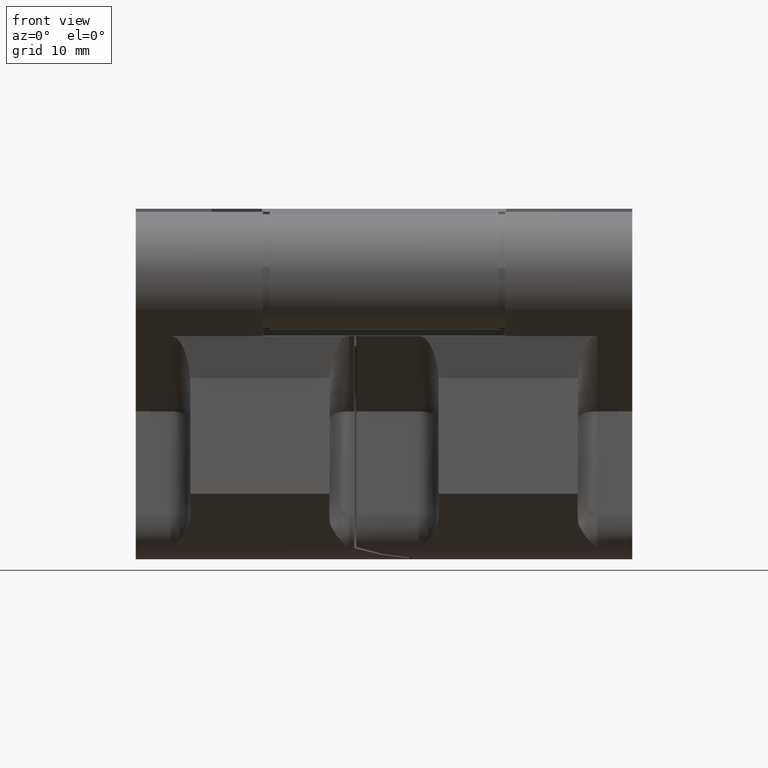
[diagram: clean part render]
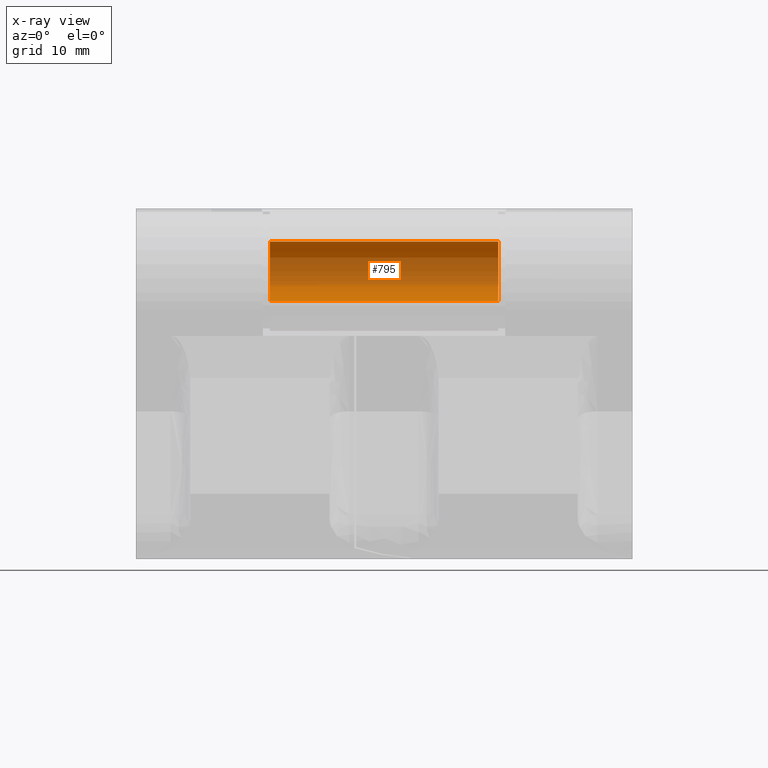
[diagram: x-ray — body ghosted, one internal face saturated and labeled with its STEP entity id]
A machine part, front view, then the same camera in x-ray: the body is ghosted and one INTERNAL B-rep face — a face not visible from any outside direction — is saturated and labeled: STEP entity #795.
In plain terms, the highlighted face is a freeform B-spline surface patch.
Its self-contained STEP definition (entity closure, byte-faithful):
#697=CARTESIAN_POINT('',(12.074999999999831,-33.764622712816461,31.990752001228881));
#698=CARTESIAN_POINT('',(12.074999999999825,-30.773870711617075,31.755374714045345));
#699=CARTESIAN_POINT('',(12.074999999999831,-31.009247998800621,28.764622712845970));
#700=CARTESIAN_POINT('',(12.074999999999825,-31.244625285984153,25.773870711646584));
#701=CARTESIAN_POINT('',(12.074999999999831,-34.235377287183539,26.009247998830119));
#702=CARTESIAN_POINT('',(-12.089374999992740,-33.764622712816461,31.990752001228881));
#703=CARTESIAN_POINT('',(-12.089374999992739,-30.773870711617075,31.755374714045345));
#704=CARTESIAN_POINT('',(-12.089374999992740,-31.009247998800621,28.764622712845970));
#705=CARTESIAN_POINT('',(-12.089374999992739,-31.244625285984153,25.773870711646584));
#706=CARTESIAN_POINT('',(-12.089374999992740,-34.235377287183539,26.009247998830119));
#714=(BOUNDED_SURFACE()B_SPLINE_SURFACE(2,1,((#697,#702),(#698,#703),(#699,#704),(#700,#705),(#701,#706)),.UNSPECIFIED.,.F.,.F.,.U.)B_SPLINE_SURFACE_WITH_KNOTS((3,2,3),(2,2),(0.0,4.970562748477139,9.941125496954278),(0.0,24.164374999992560),.UNSPECIFIED.)GEOMETRIC_REPRESENTATION_ITEM()RATIONAL_B_SPLINE_SURFACE(((1.0,1.0),(0.707106781186548,0.707106781186548),(1.0,1.0),(0.707106781186548,0.707106781186548),(1.0,1.0)))REPRESENTATION_ITEM('')SURFACE());
#715=CARTESIAN_POINT('',(11.500000000000000,-31.0,29.000000000029502));
#716=VERTEX_POINT('',#715);
#717=CARTESIAN_POINT('',(11.500000000000011,-33.764625533168399,31.990752223192722));
#718=VERTEX_POINT('',#717);
#719=CARTESIAN_POINT('',(11.500000000000000,-31.0,29.000000000029502));
#720=CARTESIAN_POINT('',(11.500000000000002,-31.000000000000064,31.773174098259215));
#721=CARTESIAN_POINT('',(11.500000000000007,-33.764625533168406,31.990752223192725));
#729=(BOUNDED_CURVE()B_SPLINE_CURVE(2,(#719,#720,#721),.UNSPECIFIED.,.F.,.U.)B_SPLINE_CURVE_WITH_KNOTS((3,3),(0.0,0.236331462290250),.UNSPECIFIED.)CURVE()GEOMETRIC_REPRESENTATION_ITEM()RATIONAL_B_SPLINE_CURVE((1.0,0.723120469211675,0.969723693538894))REPRESENTATION_ITEM(''));
#730=EDGE_CURVE('',#716,#718,#729,.T.);
#731=ORIENTED_EDGE('',*,*,#730,.T.);
#732=CARTESIAN_POINT('',(-11.499999999988860,-33.764625499096752,31.990752220511290));
#733=VERTEX_POINT('',#732);
#734=CARTESIAN_POINT('',(11.500000000000011,-33.764625533168399,31.990752223192722));
#735=CARTESIAN_POINT('',(-11.499999999988860,-33.764625499096752,31.990752220511290));
#736=QUASI_UNIFORM_CURVE('',1,(#734,#735),.UNSPECIFIED.,.F.,.U.);
#737=EDGE_CURVE('',#718,#733,#736,.T.);
#738=ORIENTED_EDGE('',*,*,#737,.T.);
#739=CARTESIAN_POINT('',(-11.499999999992919,-31.0,29.000000000029502));
#740=VERTEX_POINT('',#739);
#741=CARTESIAN_POINT('',(-11.499999999992919,-31.0,29.000000000029502));
#742=CARTESIAN_POINT('',(-11.499999999992919,-31.000000000000050,31.773174066568632));
#743=CARTESIAN_POINT('',(-11.499999999988864,-33.764625499096752,31.990752220511293));
#751=(BOUNDED_CURVE()B_SPLINE_CURVE(2,(#741,#742,#743),.UNSPECIFIED.,.F.,.U.)B_SPLINE_CURVE_WITH_KNOTS((3,3),(0.0,0.236331460337324),.UNSPECIFIED.)CURVE()GEOMETRIC_REPRESENTATION_ITEM()RATIONAL_B_SPLINE_CURVE((1.0,0.723120471499669,0.969723689463282))REPRESENTATION_ITEM(''));
#752=EDGE_CURVE('',#740,#733,#751,.T.);
#753=ORIENTED_EDGE('',*,*,#752,.F.);
#754=CARTESIAN_POINT('',(-11.499999999988180,-34.235374500903248,26.009247779547721));
#755=VERTEX_POINT('',#754);
#756=CARTESIAN_POINT('',(-11.499999999988177,-34.235374500903248,26.009247779547717));
#757=CARTESIAN_POINT('',(-11.499999999988344,-34.117868921417781,26.000000000030781));
#758=CARTESIAN_POINT('',(-11.499999999988519,-33.999999999999901,26.000000000030749));
#759=CARTESIAN_POINT('',(-11.499999999992923,-30.999999999999950,26.000000000030099));
#760=CARTESIAN_POINT('',(-11.499999999992919,-31.0,29.000000000029502));
#768=(BOUNDED_CURVE()B_SPLINE_CURVE(2,(#756,#757,#758,#759,#760),.UNSPECIFIED.,.F.,.U.)B_SPLINE_CURVE_WITH_KNOTS((3,2,3),(0.736331460337324,0.750000000000000,1.0),.UNSPECIFIED.)CURVE()GEOMETRIC_REPRESENTATION_ITEM()RATIONAL_B_SPLINE_CURVE((0.969723689463282,0.983986309686878,1.0,0.707106781186548,1.0))REPRESENTATION_ITEM(''));
#769=EDGE_CURVE('',#755,#740,#768,.T.);
#770=ORIENTED_EDGE('',*,*,#769,.F.);
#771=CARTESIAN_POINT('',(11.500000000000011,-34.235374466831587,26.009247776866282));
#772=VERTEX_POINT('',#771);
#773=CARTESIAN_POINT('',(11.500000000000011,-34.235374466831587,26.009247776866282));
#774=CARTESIAN_POINT('',(-11.499999999988180,-34.235374500903248,26.009247779547721));
#775=QUASI_UNIFORM_CURVE('',1,(#773,#774),.UNSPECIFIED.,.F.,.U.);
#776=EDGE_CURVE('',#772,#755,#775,.T.);
#777=ORIENTED_EDGE('',*,*,#776,.F.);
#778=CARTESIAN_POINT('',(11.500000000000011,-34.235374466831594,26.009247776866282));
#779=CARTESIAN_POINT('',(11.500000000000005,-34.117868904302888,26.000000000030806));
#780=CARTESIAN_POINT('',(11.500000000000011,-33.999999999999901,26.000000000030781));
#781=CARTESIAN_POINT('',(11.500000000000002,-30.999999999999950,26.000000000030113));
#782=CARTESIAN_POINT('',(11.500000000000000,-31.0,29.000000000029502));
#790=(BOUNDED_CURVE()B_SPLINE_CURVE(2,(#778,#779,#780,#781,#782),.UNSPECIFIED.,.F.,.U.)B_SPLINE_CURVE_WITH_KNOTS((3,2,3),(0.736331462290250,0.750000000000000,1.0),.UNSPECIFIED.)CURVE()GEOMETRIC_REPRESENTATION_ITEM()RATIONAL_B_SPLINE_CURVE((0.969723693538896,0.983986311974873,1.0,0.707106781186548,1.0))REPRESENTATION_ITEM(''));
#791=EDGE_CURVE('',#772,#716,#790,.T.);
#792=ORIENTED_EDGE('',*,*,#791,.T.);
#793=EDGE_LOOP('',(#731,#738,#753,#770,#777,#792));
#794=FACE_OUTER_BOUND('',#793,.T.);
#795=ADVANCED_FACE('',(#794),#714,.F.);